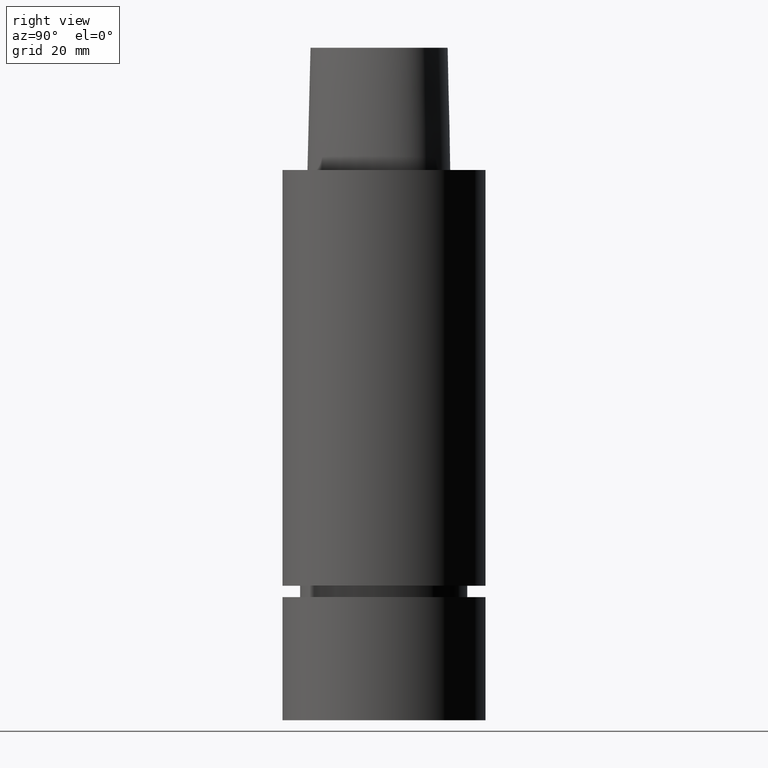
[diagram: clean part render]
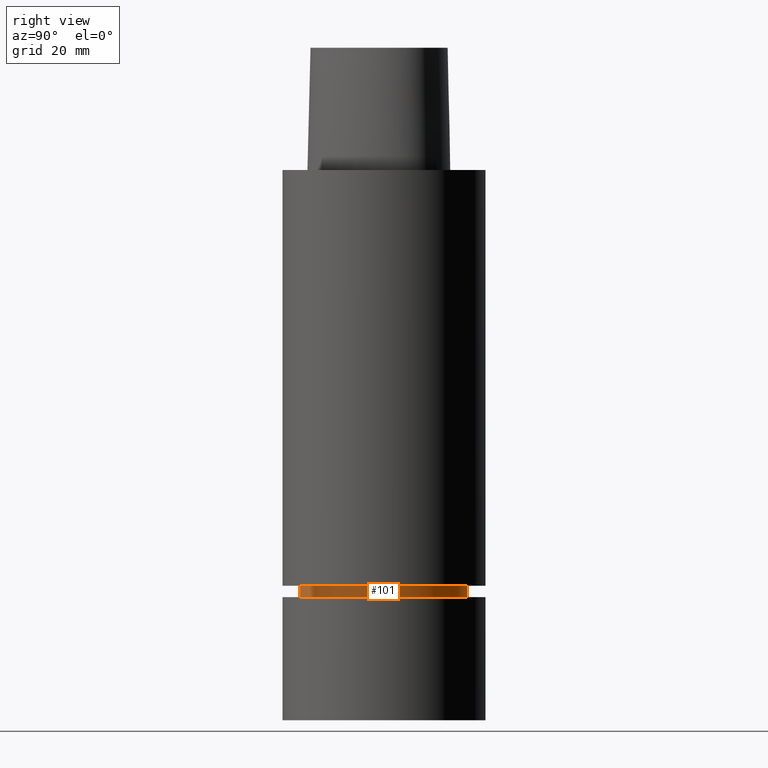
[diagram: same view with one face highlighted and labeled with its STEP entity id]
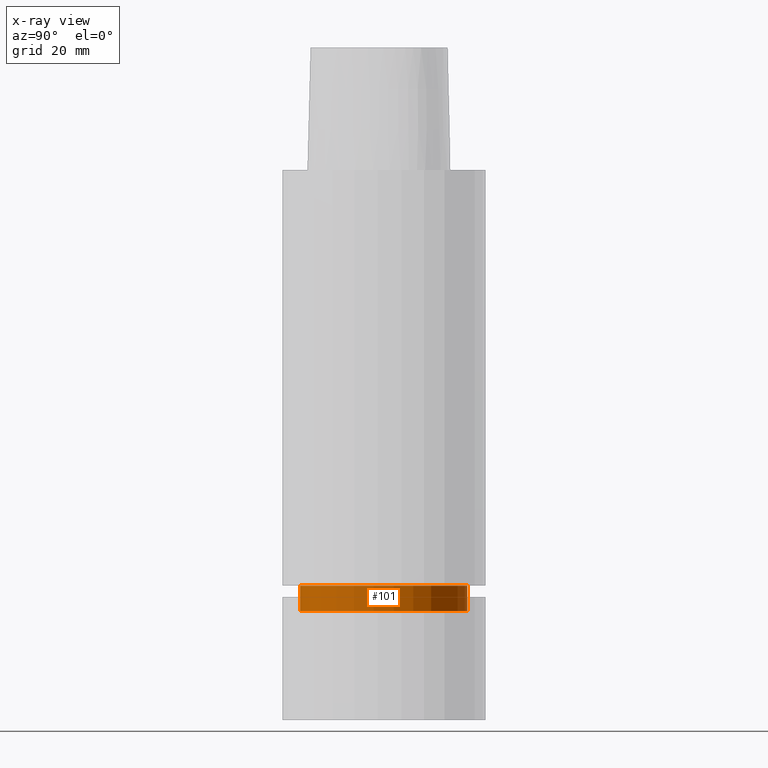
[diagram: x-ray of the same camera — body ghosted, the highlighted face saturated]
A machine part, right view. The second image highlights one B-rep face of the part: STEP entity #101.
The next image is the same camera in x-ray: the body ghosted, the highlighted face saturated — about 0% of this face is hidden behind the body in this view.
In plain terms, the highlighted cylindrical surface (bore or boss wall) has radius 20.5 mm, axis along (0, 0, -1).
Its self-contained STEP definition (entity closure, byte-faithful):
#60=EDGE_CURVE('Unnamed[1]',#148,#148,#149,.T.);
#101=ADVANCED_FACE('Unnamed[1]',(#208,#209),#210,.T.);
#115=EDGE_CURVE('Unnamed[1]',#229,#229,#230,.T.);
#148=VERTEX_POINT('',#261);
#149=CIRCLE('',#262,20.5000000000012);
#208=FACE_BOUND('',#813,.T.);
#209=FACE_BOUND('',#814,.T.);
#210=CYLINDRICAL_SURFACE('',#815,20.4999999999961);
#229=VERTEX_POINT('',#839);
#230=CIRCLE('',#840,20.4999999999911);
#261=CARTESIAN_POINT('',(6.62604227973845E-015,20.5000000000012,-108.211482434801));
#262=AXIS2_PLACEMENT_3D('',#915,#916,#917);
#813=EDGE_LOOP('',(#979));
#814=EDGE_LOOP('',(#980));
#815=AXIS2_PLACEMENT_3D('',#981,#982,#983);
#839=CARTESIAN_POINT('',(6.24570832399483E-015,20.4999999999911,-102.000157569404));
#840=AXIS2_PLACEMENT_3D('',#1000,#1001,#1002);
#915=CARTESIAN_POINT('',(6.62604227973845E-015,1.32520845594769E-014,-108.211482434801));
#916=DIRECTION('',(6.12323399573677E-017,1.22464679914735E-016,-1.0));
#917=DIRECTION('',(-1.23259516440783E-032,1.0,1.22464679914735E-016));
#979=ORIENTED_EDGE('',*,*,#60,.F.);
#980=ORIENTED_EDGE('',*,*,#115,.T.);
#981=CARTESIAN_POINT('',(6.43587530186664E-015,1.28717506037333E-014,-105.105820002103));
#982=DIRECTION('',(6.12323399573677E-017,1.22464679914735E-016,-1.0));
#983=DIRECTION('',(-1.23259516440783E-032,1.0,1.22464679914735E-016));
#1000=CARTESIAN_POINT('',(6.24570832399483E-015,1.24914166479896E-014,-102.000157569404));
#1001=DIRECTION('',(6.12323399573677E-017,1.22464679914735E-016,-1.0));
#1002=DIRECTION('',(-1.23259516440783E-032,1.0,1.22464679914735E-016));